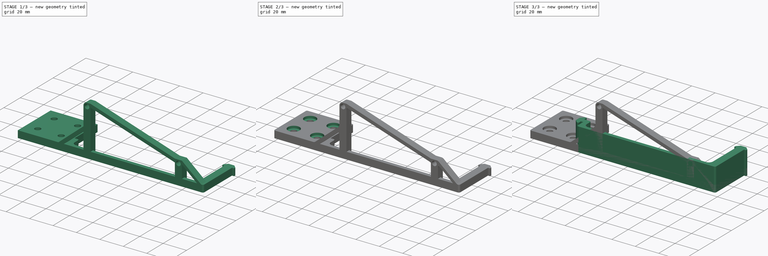
[diagram: build sequence overview — one tinted view per stage of 3, left to right]
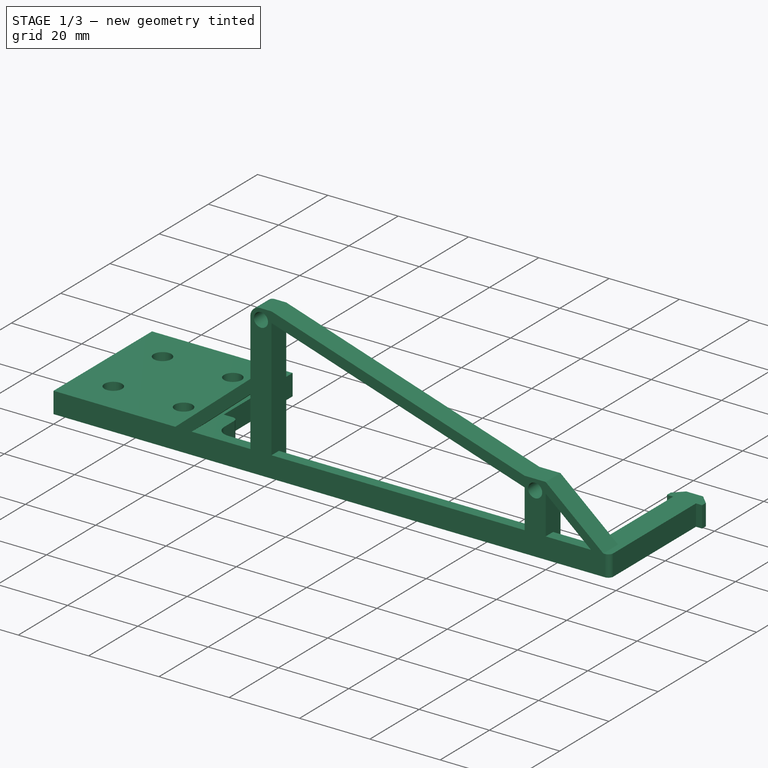
[diagram: stage 1 of 3 — iso view after this stage's code; geometry added in this stage tinted green]
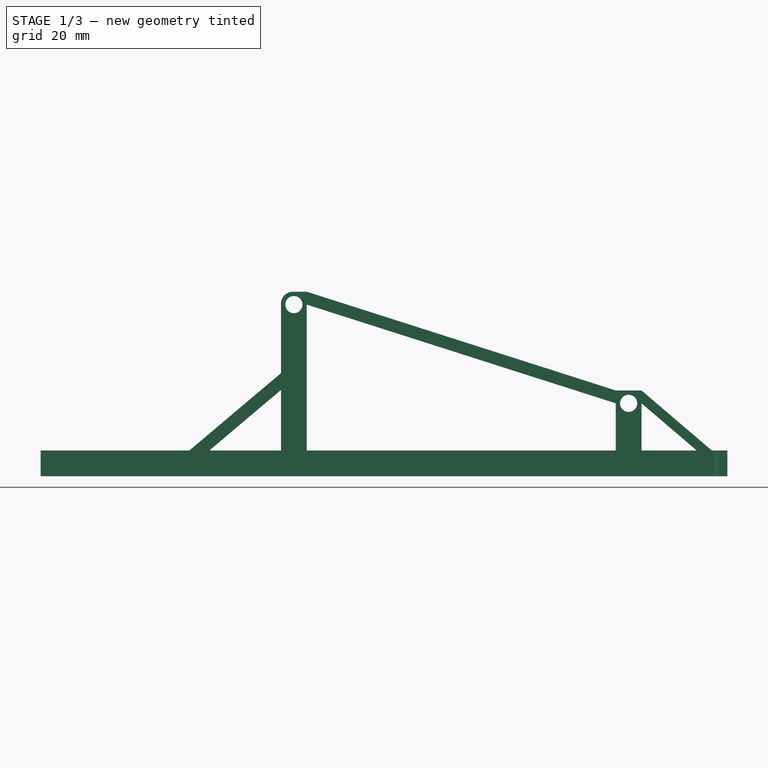
[diagram: stage 1 of 3 — front view after this stage's code; geometry added in this stage tinted green]
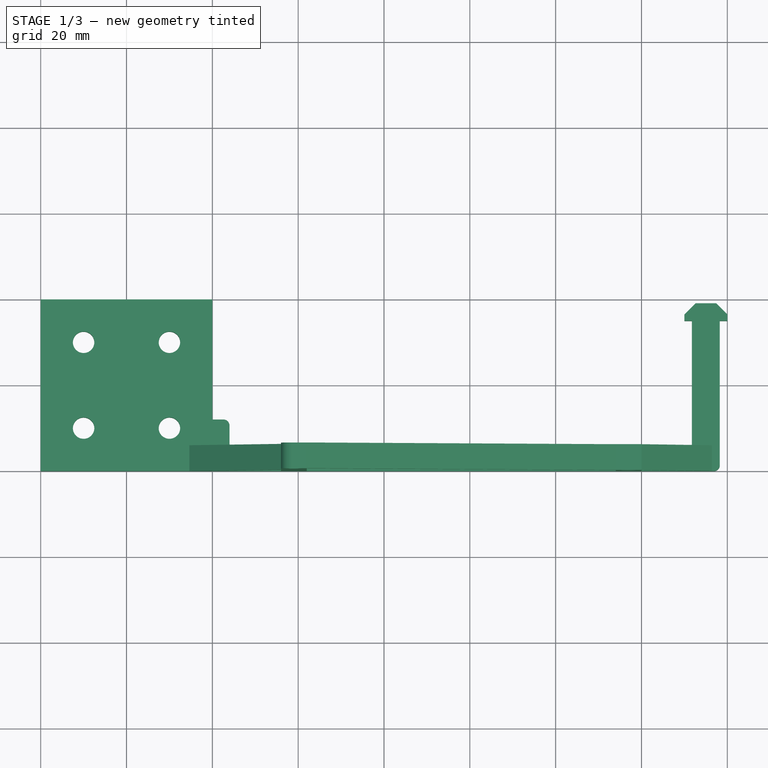
[diagram: stage 1 of 3 — top view after this stage's code; geometry added in this stage tinted green]
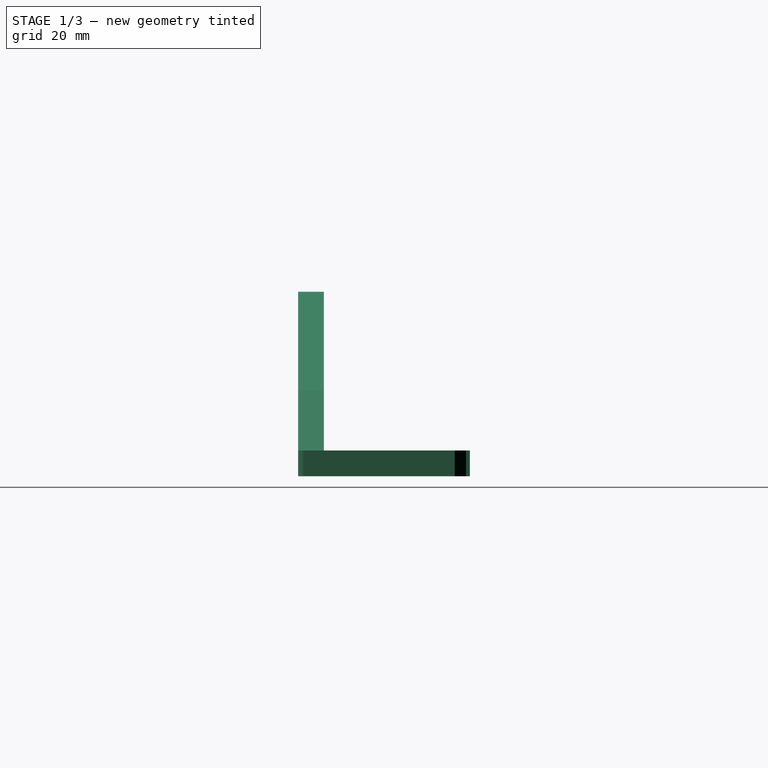
[diagram: stage 1 of 3 — right view after this stage's code; geometry added in this stage tinted green]
FCSTD DOCUMENT  (FreeCAD 1.1R)
Label: simple bracket
License: All rights reserved
LicenseURL: https://en.wikipedia.org/wiki/All_rights_reserved
objects: Sketcher::SketchObject×5, PartDesign::Pad×3, Part::DatumPlane×3, App::Point×2, PartDesign::Pocket×2, PartDesign::Body×2, PartDesign::Fillet×2
note: 33 computed .brp shape members not serialized (recipe doc carries the construction recipe); baked Part::Feature solids carry a one-line shape summary decoded from their .brp

FEATURE [PartDesign::Body] Body
  AllowCompound = false
  Group = -> [Sketch,Pad,DatumPlane,Sketch002,Pocket]
  Origin = -> Origin
  Placement = pos=(0,56.654,0) rot=(0,0,1;0rad)
  Tip = -> Pocket
FEATURE [App::Point] Origin003
  Role = Origin
FEATURE [Sketcher::SketchObject] Sketch003
  ArcFitTolerance = 1e-06
  AttachmentSupport = -> [Origin002]
  ExternalTypes = [0]
  FullyConstrained = true
  MakeInternals = false
  MapMode = 5
  sketch-geometry (89):
    g0: LineSegment StartX=-36 StartY=6.53553 StartZ=0 EndX=-36 EndY=10.5858 EndZ=0
    g1: LineSegment StartX=-38.5858 StartY=0 StartZ=0 EndX=76.8358 EndY=0 EndZ=0
    g2: LineSegment StartX=78.25 StartY=1.41421 StartZ=0 EndX=78.25 EndY=35 EndZ=0
    g3: LineSegment StartX=77.4 StartY=39.1 StartZ=0 EndX=72.6 EndY=39.1 EndZ=0
    g4: LineSegment StartX=70 StartY=35 StartZ=0 EndX=71.75 EndY=35 EndZ=0
    g5: LineSegment StartX=71.75 StartY=35 StartZ=0 EndX=71.75 EndY=6.53553 EndZ=0
    g6: LineSegment StartX=78.25 StartY=35 StartZ=0 EndX=80 EndY=35 EndZ=0
    g7: LineSegment StartX=70 StartY=35 StartZ=0 EndX=70 EndY=36.5 EndZ=0
    g8: LineSegment StartX=70 StartY=36.5 StartZ=0 EndX=72.6 EndY=39.1 EndZ=0
    g9: LineSegment StartX=77.4 StartY=39.1 StartZ=0 EndX=80 EndY=36.5 EndZ=0
    g10: LineSegment StartX=80 StartY=36.5 StartZ=0 EndX=80 EndY=35 EndZ=0
    g11: LineSegment [constr] StartX=70 StartY=36.5 StartZ=0 EndX=80 EndY=36.5 EndZ=0
    g12: LineSegment [constr] StartX=-37.4142 StartY=12 StartZ=0 EndX=-42 EndY=12 EndZ=0
    g13: LineSegment [constr] StartX=-46.1 StartY=12.4 StartZ=0 EndX=-46.1 EndY=7.6 EndZ=0
    g14: LineSegment [constr] StartX=-42 StartY=5 StartZ=0 EndX=-42 EndY=8 EndZ=0
    g15: LineSegment [constr] StartX=-42 StartY=8 StartZ=0 EndX=-40 EndY=8 EndZ=0
    g16: LineSegment [constr] StartX=-42 StartY=12 StartZ=0 EndX=-42 EndY=15 EndZ=0
    g17: LineSegment [constr] StartX=-42 StartY=5 StartZ=0 EndX=-43.5 EndY=5 EndZ=0
    g18: LineSegment [constr] StartX=-43.5 StartY=5 StartZ=0 EndX=-46.1 EndY=7.6 EndZ=0
    g19: LineSegment [constr] StartX=-46.1 StartY=12.4 StartZ=0 EndX=-43.5 EndY=15 EndZ=0
    g20: LineSegment [constr] StartX=-43.5 StartY=15 StartZ=0 EndX=-42 EndY=15 EndZ=0
    g21: LineSegment [constr] StartX=-43.5 StartY=5 StartZ=0 EndX=-43.5 EndY=15 EndZ=0
    g22: LineSegment [constr] StartX=-40 StartY=8 StartZ=0 EndX=-40 EndY=1.41421 EndZ=0
    g23: GeomPoint [constr] X=-36 Y=3 Z=0
    g24: ArcOfCircle CenterX=76.8358 CenterY=1.41421 CenterZ=0 NormalX=0 NormalY=0 NormalZ=1 AngleXU=0 Radius=1.41421 StartAngle=4.71239 EndAngle=6.28319
    g25: GeomPoint [constr] X=78.25 Y=0 Z=0
    g26: LineSegment [constr] StartX=76.8358 StartY=0 StartZ=0 EndX=78.25 EndY=1.41421 EndZ=0
    g27: GeomPoint [constr] X=-36 Y=12 Z=0
    g28: ArcOfCircle [constr] CenterX=-38.5858 CenterY=1.41421 CenterZ=0 NormalX=0 NormalY=0 NormalZ=1 AngleXU=0 Radius=1.41421 StartAngle=3.14159 EndAngle=4.71239
    g29: GeomPoint [constr] X=-40 Y=0 Z=0
    g30: LineSegment [constr] StartX=-40 StartY=1.41421 StartZ=0 EndX=-38.5858 EndY=0 EndZ=0
    g31: GeomPoint [constr] X=71.75 Y=3 Z=0
    g32: LineSegment [constr] StartX=-24.125 StartY=4.41421 StartZ=0 EndX=-24.125 EndY=6 EndZ=0
    g33: LineSegment [constr] StartX=-24.125 StartY=6 StartZ=0 EndX=-18.125 EndY=6 EndZ=0
    g34: LineSegment [constr] StartX=-18.125 StartY=6 StartZ=0 EndX=-18.125 EndY=4.41421 EndZ=0
    g35: LineSegment [constr] StartX=53.875 StartY=4.41421 StartZ=0 EndX=53.875 EndY=6 EndZ=0
    g36: LineSegment [constr] StartX=53.875 StartY=6 StartZ=0 EndX=59.875 EndY=6 EndZ=0
    g37: LineSegment [constr] StartX=59.875 StartY=6 StartZ=0 EndX=59.875 EndY=4.41421 EndZ=0
    g38: LineSegment StartX=-32.4645 StartY=3 StartZ=0 EndX=-25.5392 EndY=3 EndZ=0
    g39: LineSegment StartX=-16.7108 StartY=3 StartZ=0 EndX=52.4608 EndY=3 EndZ=0
    g40: LineSegment StartX=61.2892 StartY=3 StartZ=0 EndX=68.2145 EndY=3 EndZ=0
    g41: LineSegment [constr] StartX=71.75 StartY=35 StartZ=0 EndX=75 EndY=35 EndZ=0
    g42: LineSegment [constr] StartX=75 StartY=35 StartZ=0 EndX=78.25 EndY=35 EndZ=0
    g43: LineSegment [constr] StartX=75 StartY=35 StartZ=0 EndX=75 EndY=0 EndZ=0
    g44: ArcOfCircle CenterX=-37.4142 CenterY=10.5858 CenterZ=0 NormalX=0 NormalY=0 NormalZ=1 AngleXU=0 Radius=1.41421 StartAngle=4e-16 EndAngle=1.5708
    g45: GeomPoint [constr] X=-36 Y=12 Z=0
    g46: ArcOfCircle CenterX=-32.4645 CenterY=6.53553 CenterZ=0 NormalX=0 NormalY=0 NormalZ=1 AngleXU=0 Radius=3.53553 StartAngle=3.14159 EndAngle=4.71239
    g47: GeomPoint [constr] X=-36 Y=3 Z=0
    g48: ArcOfCircle [constr] CenterX=-25.5392 CenterY=4.41421 CenterZ=0 NormalX=0 NormalY=0 NormalZ=1 AngleXU=0 Radius=1.41421 StartAngle=4.71239 EndAngle=6.28319
    g49: GeomPoint [constr] X=-24.125 Y=3 Z=0
    g50: ArcOfCircle [constr] CenterX=-16.7108 CenterY=4.41421 CenterZ=0 NormalX=0 NormalY=0 NormalZ=1 AngleXU=0 Radius=1.41421 StartAngle=3.14159 EndAngle=4.71239
    g51: GeomPoint [constr] X=-18.125 Y=3 Z=0
    g52: ArcOfCircle [constr] CenterX=61.2892 CenterY=4.41421 CenterZ=0 NormalX=0 NormalY=0 NormalZ=1 AngleXU=0 Radius=1.41421 StartAngle=3.14159 EndAngle=4.71239
    g53: GeomPoint [constr] X=59.875 Y=3 Z=0
    g54: ArcOfCircle [constr] CenterX=52.4608 CenterY=4.41421 CenterZ=0 NormalX=0 NormalY=0 NormalZ=1 AngleXU=0 Radius=1.41421 StartAngle=4.71239 EndAngle=6.28319
    g55: GeomPoint [constr] X=53.875 Y=3 Z=0
    g56: ArcOfCircle CenterX=68.2145 CenterY=6.53553 CenterZ=0 NormalX=0 NormalY=0 NormalZ=1 AngleXU=0 Radius=3.53553 StartAngle=4.71239 EndAngle=6.28319
    g57: GeomPoint [constr] X=71.75 Y=3 Z=0
    g58: LineSegment [constr] StartX=-36 StartY=6.53553 StartZ=0 EndX=-32.4645 EndY=3 EndZ=0
    g59: LineSegment [constr] StartX=71.75 StartY=6.53553 StartZ=0 EndX=68.2145 EndY=3 EndZ=0
    g60: LineSegment [constr] StartX=-25.5392 StartY=3 StartZ=0 EndX=-24.125 EndY=4.41421 EndZ=0
    g61: LineSegment [constr] StartX=-18.125 StartY=4.41421 StartZ=0 EndX=-16.7108 EndY=3 EndZ=0
    g62: LineSegment [constr] StartX=52.4608 StartY=3 StartZ=0 EndX=53.875 EndY=4.41421 EndZ=0
    g63: LineSegment [constr] StartX=59.875 StartY=4.41421 StartZ=0 EndX=61.2892 EndY=3 EndZ=0
    g64: LineSegment [constr] StartX=59.875 StartY=3 StartZ=0 EndX=71.75 EndY=3 EndZ=0
    g65: LineSegment [constr] StartX=-24.125 StartY=3 StartZ=0 EndX=-36 EndY=3 EndZ=0
    g66: LineSegment [constr] StartX=-37.4142 StartY=12 StartZ=0 EndX=-36 EndY=10.5858 EndZ=0
    g67: LineSegment [constr] StartX=-24.125 StartY=6 StartZ=0 EndX=-21.125 EndY=6 EndZ=0
    g68: LineSegment [constr] StartX=-21.125 StartY=6 StartZ=0 EndX=-18.125 EndY=6 EndZ=0
    g69: LineSegment [constr] StartX=53.875 StartY=6 StartZ=0 EndX=56.875 EndY=6 EndZ=0
    g70: LineSegment [constr] StartX=56.875 StartY=6 StartZ=0 EndX=59.875 EndY=6 EndZ=0
    g71: LineSegment [constr] StartX=-40 StartY=8 StartZ=0 EndX=-40 EndY=12 EndZ=0
    g72: LineSegment StartX=-40 StartY=12 StartZ=0 EndX=-37.4142 EndY=12 EndZ=0
    g73: LineSegment [constr] StartX=-40 StartY=0 StartZ=0 EndX=-40 EndY=40 EndZ=0
    g74: LineSegment StartX=-40 StartY=40 StartZ=0 EndX=-80 EndY=40 EndZ=0
    g75: LineSegment StartX=-80 StartY=40 StartZ=0 EndX=-80 EndY=0 EndZ=0
    g76: LineSegment StartX=-80 StartY=0 StartZ=0 EndX=-40 EndY=0 EndZ=0
    g77: LineSegment StartX=-40 StartY=0 StartZ=0 EndX=-38.5858 EndY=0 EndZ=0
    g78: LineSegment StartX=-40 StartY=40 StartZ=0 EndX=-40 EndY=12 EndZ=0
    g79: LineSegment StartX=-25.5392 StartY=3 StartZ=0 EndX=-16.7108 EndY=3 EndZ=0
    g80: LineSegment StartX=52.4608 StartY=3 StartZ=0 EndX=61.2892 EndY=3 EndZ=0
    g81: Circle CenterX=-70 CenterY=30 CenterZ=0 NormalX=0 NormalY=0 NormalZ=1 AngleXU=0 Radius=2.5
    g82: Circle CenterX=-50 CenterY=30 CenterZ=0 NormalX=0 NormalY=0 NormalZ=1 AngleXU=0 Radius=2.5
    g83: Circle CenterX=-70 CenterY=10 CenterZ=0 NormalX=0 NormalY=0 NormalZ=1 AngleXU=0 Radius=2.5
    g84: Circle CenterX=-50 CenterY=10 CenterZ=0 NormalX=0 NormalY=0 NormalZ=1 AngleXU=0 Radius=2.5
    g85: LineSegment [constr] StartX=-70 StartY=30 StartZ=0 EndX=-50 EndY=30 EndZ=0
    g86: LineSegment [constr] StartX=-50 StartY=30 StartZ=0 EndX=-50 EndY=10 EndZ=0
    g87: LineSegment [constr] StartX=-50 StartY=10 StartZ=0 EndX=-70 EndY=10 EndZ=0
    g88: LineSegment [constr] StartX=-70 StartY=10 StartZ=0 EndX=-70 EndY=30 EndZ=0
  constraints (219):
    c: Vertical(g0)
    c: PointOnObject(g25,g-1)
    c: Vertical(g2)
    c: Horizontal(g4)
    c: Coincident(g4,g5)
    c: Coincident(g6,g2)
    c: Perpendicular(g5,g4)
    c: Horizontal(g6,g2)
    c: Horizontal(g2,g4)
    c: Equal(g4,g6)
    c: Distance(g25,g5) = 6.5
    c: DistanceX(g4,g6) = 10
    c: Coincident(g7,g4)
    c: Coincident(g7,g8)
    c: Coincident(g8,g3)
    c: Coincident(g9,g3)
    c: Coincident(g9,g10)
    c: Coincident(g10,g6)
    c: Parallel(g10,g7)
    c: Equal(g10,g7)
    c: Angle(g8,g9) = 1.5708
    c: Perpendicular(g4,g7)
    c: Coincident(g11,g7)
    c: Coincident(g11,g9)
    c: Angle(g11,g8) = 0.785398
    c: DistanceY(g10,g10) = 1.5
    c: Horizontal(g3)
    c: Distance(g6,g3) = 4.1
    c: Coincident(g14,g15)
    c: Coincident(g16,g12)
    c: Perpendicular(g15,g14)
    c: Equal(g14,g16)
    c: Distance(g27,g15) = 4
    c: Coincident(g17,g14)
    c: Coincident(g17,g18)
    c: Coincident(g18,g13)
    c: Coincident(g19,g13)
    c: Coincident(g19,g20)
    c: Coincident(g20,g16)
    c: Parallel(g20,g17)
    c: Equal(g20,g17)
    c: Angle(g18,g19) = 1.5708
    c: Perpendicular(g14,g17)
    c: Coincident(g21,g17)
    c: Coincident(g21,g19)
    c: Angle(g21,g18) = 0.785398
    c: Distance(g16,g13) = 4.1
    c: Coincident(g22,g15)
    c: Perpendicular(g22,g1)
    c: DistanceX(g15,g15) = 2
    c: DistanceX(g29,g23) = 4
    c: Perpendicular(g22,g15)
    c: Perpendicular(g0,g12)
    c: Perpendicular(g12,g16)
    c: Parallel(g13,g0)
    c: Vertical(g14,g12)
    c: Distance(g20,g20) = 1.5
    c: Distance(g17,g-1) = 5
    c: PointOnObject(g23,g0)
    c: PointOnObject(g25,g1)
    c: PointOnObject(g25,g2)
    c: Tangent(g1,g24) = -1.5708
    c: Tangent(g2,g24) = -1.5708
    c: Coincident(g26,g1)
    c: Coincident(g26,g2)
    c: PointOnObject(g27,g0)
    c: PointOnObject(g27,g12)
    c: PointOnObject(g29,g1)
    c: PointOnObject(g29,g22)
    c: Tangent(g1,g28) = -1.5708
    c: Tangent(g22,g28) = -1.5708
    c: Coincident(g30,g1)
    c: Coincident(g30,g22)
    c: PointOnObject(g31,g5)
    c: Distance(g4,g1) = 35
    c: DistanceY(g17,g19) = 10
    c: Distance(g-1,g22) = 40
    c: Coincident(g32,g33)
    c: Coincident(g33,g34)
    c: Perpendicular(g34,g33)
    c: Coincident(g35,g36)
    c: Parallel(g36,g33)
    c: Coincident(g36,g37)
    c: Vertical(g37)
    c: Parallel(g38,g33)
    c: Perpendicular(g38,g0)
    c: Perpendicular(g32,g38)
    c: Horizontal(g39)
    c: Horizontal(g49,g51)
    c: Horizontal(g55,g53)
    c: Perpendicular(g35,g39)
    c: Equal(g33,g36)
    c: Distance(g33,g33) = 6
    c: Distance(g34,g51) = 3
    c: Parallel(g40,g1)
    c: Parallel(g38,g1)
    c: Distance(g1,g39) = 3
    c: Coincident(g41,g4)
    c: Horizontal(g41)
    c: Coincident(g41,g42)
    c: Coincident(g42,g2)
    c: Equal(g41,g42)
    c: Coincident(g43,g41)
    c: Vertical(g43)
    c: Distance(g22,g43) = 115
    c: PointOnObject(g45,g0)
    c: PointOnObject(g45,g12)
    c: Tangent(g0,g44) = -1.5708
    c: Tangent(g12,g44) = -1.5708
    c: PointOnObject(g47,g38)
    c: Tangent(g0,g46) = 1.5708
    c: Tangent(g38,g46) = -1.5708
    c: PointOnObject(g49,g32)
    c: PointOnObject(g49,g38)
    c: Tangent(g32,g48) = -1.5708
    c: Tangent(g38,g48) = -1.5708
    c: PointOnObject(g51,g34)
    c: PointOnObject(g51,g39)
    c: Tangent(g34,g50) = -1.5708
    c: Tangent(g39,g50) = -1.5708
    c: PointOnObject(g53,g37)
    c: PointOnObject(g53,g40)
    c: Tangent(g37,g52) = -1.5708
    c: Tangent(g40,g52) = -1.5708
    c: PointOnObject(g55,g35)
    c: PointOnObject(g55,g39)
    c: Tangent(g35,g54) = -1.5708
    c: Tangent(g39,g54) = -1.5708
    c: PointOnObject(g57,g40)
    c: Tangent(g5,g56) = 1.5708
    c: Tangent(g40,g56) = -1.5708
    c: Coincident(g58,g0)
    c: Coincident(g58,g38)
    c: Coincident(g59,g5)
    c: Coincident(g59,g40)
    c: Equal(g59,g58)
    c: Distance(g58,g58) = 5
    c: Coincident(g60,g38)
    c: Coincident(g60,g32)
    c: Coincident(g61,g34)
    c: Coincident(g61,g39)
    c: Coincident(g62,g39)
    c: Coincident(g62,g35)
    c: Coincident(g63,g37)
    c: Coincident(g63,g40)
    c: Equal(g63,g62)
    c: Equal(g62,g61)
    c: Equal(g61,g60)
    c: Distance(g60,g60) = 2
    c: Equal(g65,g64)
    c: Coincident(g64,g57)
    c: Coincident(g64,g53)
    c: Coincident(g65,g49)
    c: Coincident(g65,g47)
    c: Coincident(g66,g12)
    c: Coincident(g66,g0)
    c: Equal(g66,g60)
    c: Equal(g30,g66)
    c: Equal(g26,g63)
    c: Equal(g34,g35)
    c: Coincident(g67,g32)
    c: Coincident(g67,g68)
    c: Coincident(g68,g33)
    c: Equal(g68,g67)
    c: PointOnObject(g67,g33)
    c: Coincident(g69,g35)
    c: Coincident(g69,g70)
    c: Coincident(g70,g36)
    c: Equal(g70,g69)
    c: PointOnObject(g69,g36)
    c: DistanceX(g67,g69) = 78
    c: Coincident(g23,g47)
    c: Coincident(g31,g57)
    c: PointOnObject(g43,g1)
    c: DistanceX(g33,g35) = 72
    c: Coincident(g71,g15)
    c: PointOnObject(g71,g12)
    c: Vertical(g71)
    c: Coincident(g72,g71)
    c: Coincident(g72,g12)
    c: Coincident(g73,g74)
    c: Coincident(g74,g75)
    c: Coincident(g75,g76)
    c: Coincident(g76,g73)
    c: Vertical(g73)
    c: Vertical(g75)
    c: Horizontal(g74)
    c: Horizontal(g76)
    c: Coincident(g73,g29)
    c: DistanceX(g74,g74) = 40
    c: Equal(g75,g76)
    c: Coincident(g77,g29)
    c: Coincident(g77,g1)
    c: Coincident(g78,g73)
    c: Coincident(g78,g71)
    c: Coincident(g79,g38)
    c: Coincident(g79,g39)
    c: Coincident(g80,g39)
    c: Coincident(g80,g40)
    c: Coincident(g85,g81)
    c: Coincident(g85,g82)
    c: Coincident(g85,g86)
    c: Coincident(g86,g84)
    c: Vertical(g86)
    c: Coincident(g86,g87)
    c: Coincident(g87,g83)
    c: Horizontal(g87)
    c: Coincident(g87,g88)
    c: Coincident(g88,g81)
    c: Vertical(g88)
    c: Perpendicular(g85,g88)
    c: Equal(g88,g85)
    c: Equal(g81,g83)
    c: Equal(g83,g82)
    c: Equal(g82,g84)
    c: Distance(g74,g85) = 10
    c: Diameter(g82) = 5
    c: Distance(g83,g76) = 10
    c: Distance(g83,g75) = 10
FEATURE [PartDesign::Pad] Pad001
  Direction = (0,0,1)
  Length = 6
  Length2 = 10
  Profile = -> Sketch003
  ReferenceAxis = -> Sketch003 [N_Axis]
  Refine = true
  SideType = 0
  Suppressed = false
  Type = 0
  Type2 = 0
FEATURE [Part::DatumPlane] DatumPlane001
  AttachmentOffset = pos=(0,0,0) rot=(0,1,0;1.5708rad)
  AttachmentSupport = -> [Pad001]
  MapMode = 7
  Placement = pos=(-80,0,0) rot=(1,0,0;1.5708rad)
FEATURE [Sketcher::SketchObject] Sketch004
  ArcFitTolerance = 1e-06
  AttachmentSupport = -> [DatumPlane001]
  ExternalTypes = [0]
  FullyConstrained = false
  MakeInternals = false
  MapMode = 5
  Placement = pos=(-80,0,0) rot=(1,0,0;1.5708rad)
  sketch-geometry (33):
    g0: Circle CenterX=59 CenterY=40 CenterZ=0 NormalX=0 NormalY=0 NormalZ=1 AngleXU=0 Radius=2
    g1: Circle CenterX=137 CenterY=17 CenterZ=0 NormalX=0 NormalY=0 NormalZ=1 AngleXU=0 Radius=2
    g2: LineSegment [constr] StartX=56 StartY=0 StartZ=0 EndX=56 EndY=40.2233 EndZ=0
    g3: LineSegment StartX=58.7767 StartY=43 StartZ=0 EndX=62 EndY=43 EndZ=0
    g4: LineSegment [constr] StartX=62 StartY=43 StartZ=0 EndX=62 EndY=0 EndZ=0
    g5: LineSegment [constr] StartX=134 StartY=0 StartZ=0 EndX=134 EndY=20 EndZ=0
    g6: LineSegment StartX=134 StartY=20 StartZ=0 EndX=136.748 EndY=20 EndZ=0
    g7: LineSegment [constr] StartX=140 StartY=16.7476 StartZ=0 EndX=140 EndY=0 EndZ=0
    g8: LineSegment StartX=56 StartY=0 StartZ=0 EndX=62 EndY=0 EndZ=0
    g9: LineSegment [constr] StartX=56 StartY=40 StartZ=0 EndX=59 EndY=40 EndZ=0
    g10: LineSegment [constr] StartX=59 StartY=40 StartZ=0 EndX=62 EndY=40 EndZ=0
    g11: LineSegment [constr] StartX=137 StartY=17 StartZ=0 EndX=134 EndY=17 EndZ=0
    g12: LineSegment [constr] StartX=137 StartY=17 StartZ=0 EndX=140 EndY=17 EndZ=0
    g13: LineSegment StartX=134 StartY=0 StartZ=0 EndX=140 EndY=0 EndZ=0
    g14: LineSegment StartX=62 StartY=43 StartZ=0 EndX=134 EndY=20 EndZ=0
    g15: LineSegment StartX=134 StartY=17 StartZ=0 EndX=62 EndY=40 EndZ=0
    g16: LineSegment StartX=62 StartY=40 StartZ=0 EndX=62 EndY=0 EndZ=0
    g17: LineSegment StartX=134 StartY=17 StartZ=0 EndX=134 EndY=0 EndZ=0
    g18: ArcOfCircle CenterX=58.7767 CenterY=40.2233 CenterZ=0 NormalX=0 NormalY=0 NormalZ=1 AngleXU=0 Radius=2.77673 StartAngle=1.5708 EndAngle=3.14159
    g19: GeomPoint [constr] X=56 Y=43 Z=0
    g20: ArcOfCircle [constr] CenterX=136.748 CenterY=16.7476 CenterZ=0 NormalX=0 NormalY=0 NormalZ=1 AngleXU=0 Radius=3.25236 StartAngle=-9e-16 EndAngle=1.5708
    g21: GeomPoint [constr] X=140 Y=20 Z=0
    g22: LineSegment StartX=140 StartY=20 StartZ=0 EndX=156.621 EndY=5.80986 EndZ=0
    g23: LineSegment StartX=156.621 StartY=5.80986 StartZ=0 EndX=156.621 EndY=2.53961 EndZ=0
    g24: LineSegment StartX=156.621 StartY=2.53961 StartZ=0 EndX=152.401 EndY=6.41256 EndZ=0
    g25: LineSegment StartX=152.401 StartY=6.41256 StartZ=0 EndX=140 EndY=17 EndZ=0
    g26: LineSegment StartX=33.0164 StartY=0.705867 StartZ=0 EndX=56 EndY=20.1116 EndZ=0
    g27: LineSegment StartX=56 StartY=24.038 StartZ=0 EndX=31.081 EndY=2.99808 EndZ=0
    g28: LineSegment StartX=31.081 StartY=2.99808 StartZ=0 EndX=33.0164 EndY=0.705867 EndZ=0
    g29: LineSegment StartX=56 StartY=40.2233 StartZ=0 EndX=56 EndY=24.038 EndZ=0
    g30: LineSegment StartX=56 StartY=0 StartZ=0 EndX=56 EndY=20.1116 EndZ=0
    g31: LineSegment StartX=136.748 StartY=20 StartZ=0 EndX=140 EndY=20 EndZ=0
    g32: LineSegment StartX=140 StartY=17 StartZ=0 EndX=140 EndY=0 EndZ=0
  constraints (77):
    c: Equal(g0,g1)
    c: DistanceX(g0,g1) = 78
    c: Diameter(g0) = 4
    c: DistanceY(g1,g0) = 23
    c: Distance(g0,g-2) = 59
    c: Distance(g0,g-1) = 40
    c: PointOnObject(g2,g-1)
    c: Vertical(g2)
    c: Horizontal(g3)
    c: Coincident(g3,g4)
    c: PointOnObject(g4,g-1)
    c: Vertical(g4)
    c: PointOnObject(g5,g-1)
    c: Coincident(g5,g6)
    c: PointOnObject(g7,g-1)
    c: Perpendicular(g7,g6)
    c: Parallel(g6,g3)
    c: Perpendicular(g6,g5)
    c: Coincident(g8,g2)
    c: Coincident(g8,g4)
    c: PointOnObject(g9,g2)
    c: Coincident(g9,g0)
    c: Coincident(g9,g10)
    c: PointOnObject(g10,g4)
    c: Equal(g10,g9)
    c: Horizontal(g9)
    c: Horizontal(g10)
    c: Distance(g19,g9) = 3
    c: Coincident(g11,g1)
    c: PointOnObject(g11,g5)
    c: Coincident(g12,g1)
    c: PointOnObject(g12,g7)
    c: Equal(g12,g11)
    c: Horizontal(g12)
    c: Horizontal(g11)
    c: Distance(g6,g21) = 6
    c: Distance(g1,g6) = 3
    c: Coincident(g13,g5)
    c: Coincident(g13,g7)
    c: Coincident(g14,g3)
    c: Coincident(g14,g5)
    c: Coincident(g15,g11)
    c: Coincident(g15,g10)
    c: Coincident(g16,g10)
    c: Coincident(g16,g4)
    c: Coincident(g17,g11)
    c: Coincident(g17,g5)
    c: PointOnObject(g19,g2)
    c: PointOnObject(g19,g3)
    c: Tangent(g2,g18) = 1.5708
    c: Tangent(g3,g18) = 1.5708
    c: PointOnObject(g21,g6)
    c: PointOnObject(g21,g7)
    c: Tangent(g6,g20) = 1.5708
    c: Tangent(g7,g20) = 1.5708
    c: Coincident(g22,g21)
    c: Coincident(g22,g23)
    c: Vertical(g23)
    c: Coincident(g23,g24)
    c: Coincident(g25,g24)
    c: Coincident(g25,g12)
    c: Parallel(g25,g22)
    c: Symmetric(g2,g2,g26)
    c: PointOnObject(g27,g2)
    c: Parallel(g27,g26)
    c: Coincident(g27,g28)
    c: Coincident(g28,g26)
    c: Coincident(g29,g2)
    c: Coincident(g30,g2)
    c: Coincident(g30,g26)
    c: Coincident(g32,g12)
    c: Coincident(g32,g7)
    c: Coincident(g29,g27)
    c: Equal(g8,g13)
    c: Coincident(g31,g6)
    c: Perpendicular(g27,g28)
    c: Equal(g28,g10)
FEATURE [PartDesign::Pad] Pad002
  BaseFeature = -> Pad001
  Direction = (0,-1,2e-16)
  Length = 6
  Length2 = 10
  Profile = -> Sketch004
  ReferenceAxis = -> Sketch004 [N_Axis]
  Refine = true
  Reversed = true
  SideType = 0
  Suppressed = false
  Type = 0
  Type2 = 0
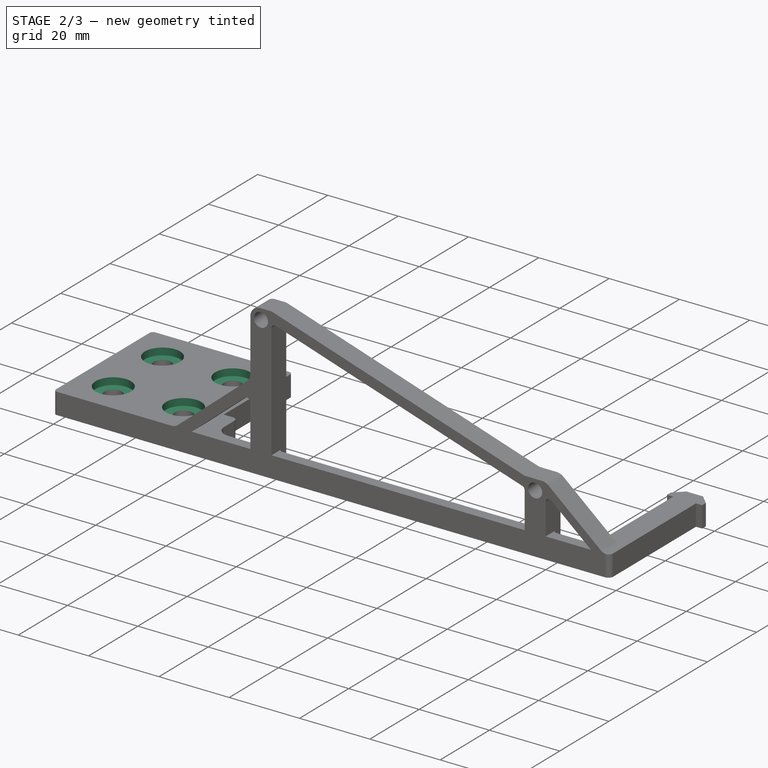
[diagram: stage 2 of 3 — iso view after this stage's code; geometry added in this stage tinted green]
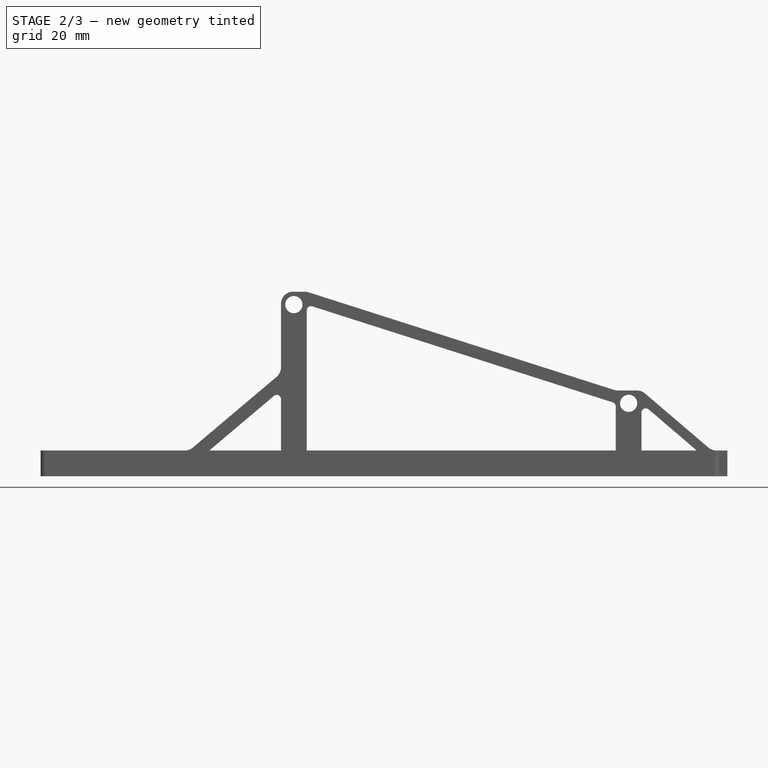
[diagram: stage 2 of 3 — front view after this stage's code; geometry added in this stage tinted green]
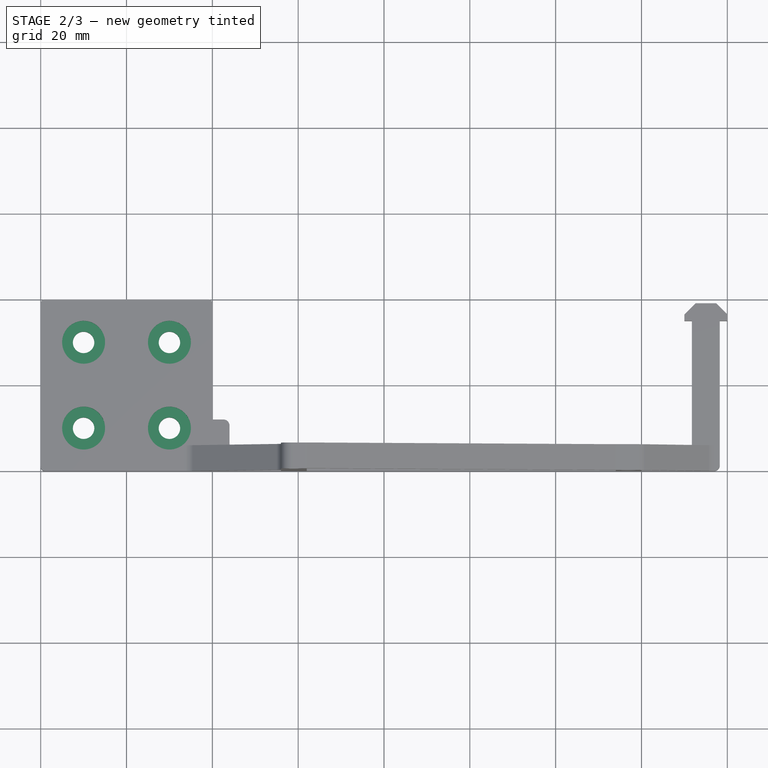
[diagram: stage 2 of 3 — top view after this stage's code; geometry added in this stage tinted green]
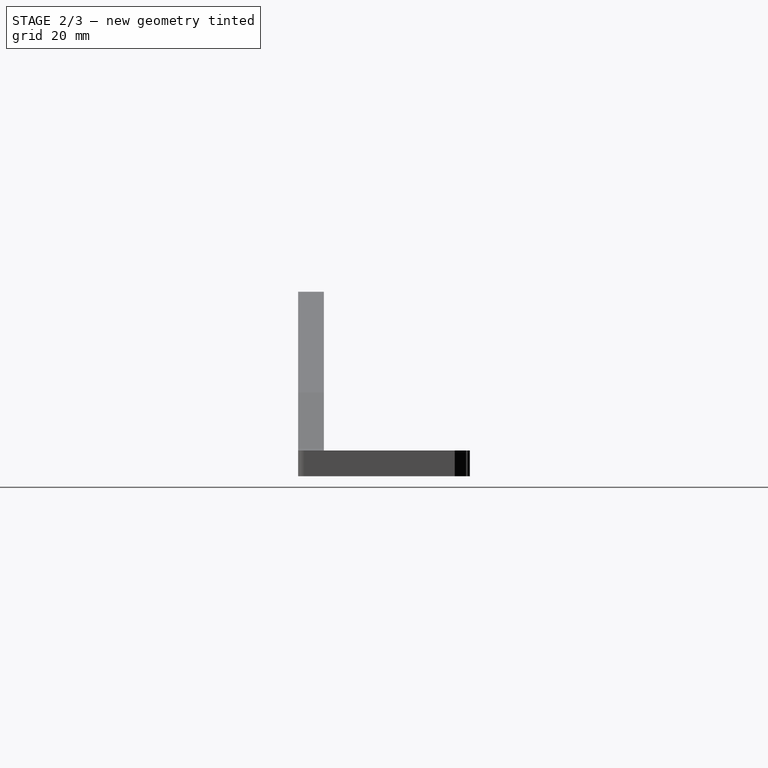
[diagram: stage 2 of 3 — right view after this stage's code; geometry added in this stage tinted green]
FEATURE [PartDesign::Fillet] Fillet
  Base = -> Pad002 [Edge107,Edge110,Edge111,Edge113,Edge15,Edge69]
  BaseFeature = -> Pad002
  Radius = 3
  Refine = true
  SupportTransform = false
  Suppressed = false
  UseAllEdges = false
FEATURE [PartDesign::Fillet] Fillet001
  Base = -> Fillet [Edge50,Edge78,Edge24,Edge135,Edge142,Edge141,Edge138,Edge87,Edge134,Edge82,Edge136]
  BaseFeature = -> Fillet
  Radius = 1
  Refine = true
  SupportTransform = false
  Suppressed = false
  UseAllEdges = false
FEATURE [Part::DatumPlane] DatumPlane002
  AttachmentOffset = pos=(0,0,0) rot=(1,0,0;1.5708rad)
  AttachmentSupport = -> [DatumPlane001]
  MapMode = 5
  Placement = pos=(-80,0,0) rot=(1,0,0;3.14159rad)
FEATURE [Sketcher::SketchObject] Sketch005
  ArcFitTolerance = 1e-06
  AttachmentOffset = pos=(0,0,-6) rot=(0,0,1;0rad)
  AttachmentSupport = -> [DatumPlane002]
  ExternalTypes = [0]
  FullyConstrained = true
  MakeInternals = false
  MapMode = 5
  Placement = pos=(-80,0,6) rot=(1,0,0;3.14159rad)
  sketch-geometry (8):
    g0: LineSegment [constr] StartX=10 StartY=-10 StartZ=0 EndX=10 EndY=-30 EndZ=0
    g1: LineSegment [constr] StartX=10 StartY=-30 StartZ=0 EndX=30 EndY=-30 EndZ=0
    g2: LineSegment [constr] StartX=30 StartY=-30 StartZ=0 EndX=30 EndY=-10 EndZ=0
    g3: LineSegment [constr] StartX=30 StartY=-10 StartZ=0 EndX=10 EndY=-10 EndZ=0
    g4: Circle CenterX=10 CenterY=-10 CenterZ=0 NormalX=0 NormalY=0 NormalZ=1 AngleXU=0 Radius=5
    g5: Circle CenterX=30 CenterY=-10 CenterZ=0 NormalX=0 NormalY=0 NormalZ=1 AngleXU=0 Radius=5
    g6: Circle CenterX=30 CenterY=-30 CenterZ=0 NormalX=0 NormalY=0 NormalZ=1 AngleXU=0 Radius=5
    g7: Circle CenterX=10 CenterY=-30 CenterZ=0 NormalX=0 NormalY=0 NormalZ=1 AngleXU=0 Radius=5
  constraints (20):
    c: Coincident(g0,g1)
    c: Coincident(g1,g2)
    c: Coincident(g2,g3)
    c: Coincident(g3,g0)
    c: Vertical(g0)
    c: Vertical(g2)
    c: Horizontal(g1)
    c: Horizontal(g3)
    c: Equal(g0,g1)
    c: DistanceX(g1,g1) = 20
    c: Distance(g0,g-2) = 10
    c: Distance(g-1,g3) = 10
    c: Coincident(g4,g0)
    c: Coincident(g5,g2)
    c: Coincident(g6,g1)
    c: Coincident(g7,g0)
    c: Equal(g7,g4)
    c: Equal(g4,g5)
    c: Equal(g5,g6)
    c: Diameter(g5) = 10
FEATURE [PartDesign::Pocket] Pocket001
  BaseFeature = -> Fillet001
  Direction = (0,0,1)
  Length = 2
  Length2 = 5
  Profile = -> Sketch005
  ReferenceAxis = -> Sketch005 [N_Axis]
  Refine = true
  Reversed = true
  SideType = 0
  Suppressed = false
  Type = 0
  Type2 = 0
FEATURE [PartDesign::Body] Body001
  AllowCompound = false
  Group = -> [Sketch003,Pad001,Sketch004,DatumPlane001,Pad002,Fillet,Fillet001,DatumPlane002,Sketch005,Pocket001]
  Origin = -> Origin002
  Tip = -> Pocket001
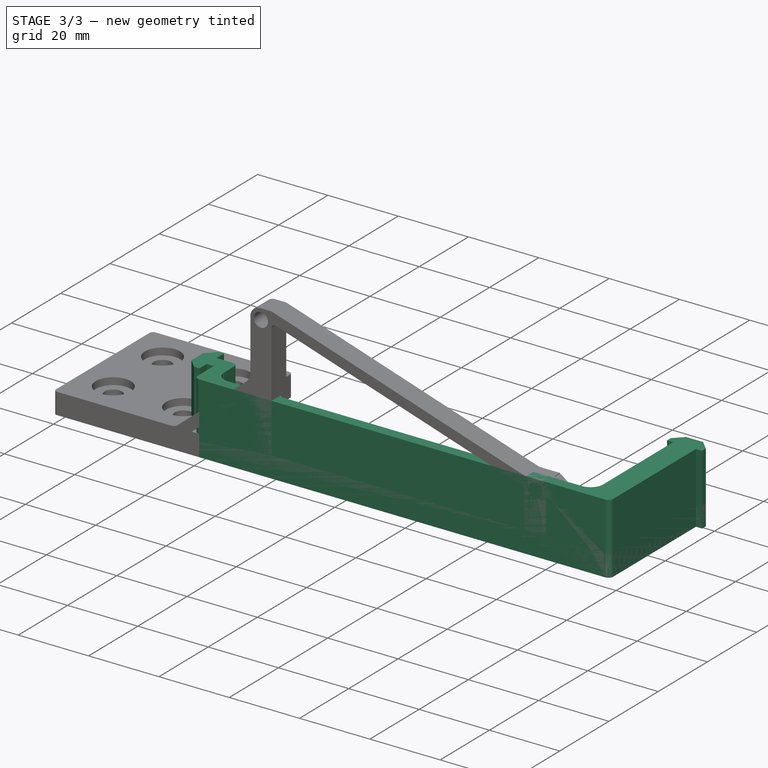
[diagram: stage 3 of 3 — iso view after this stage's code; geometry added in this stage tinted green]
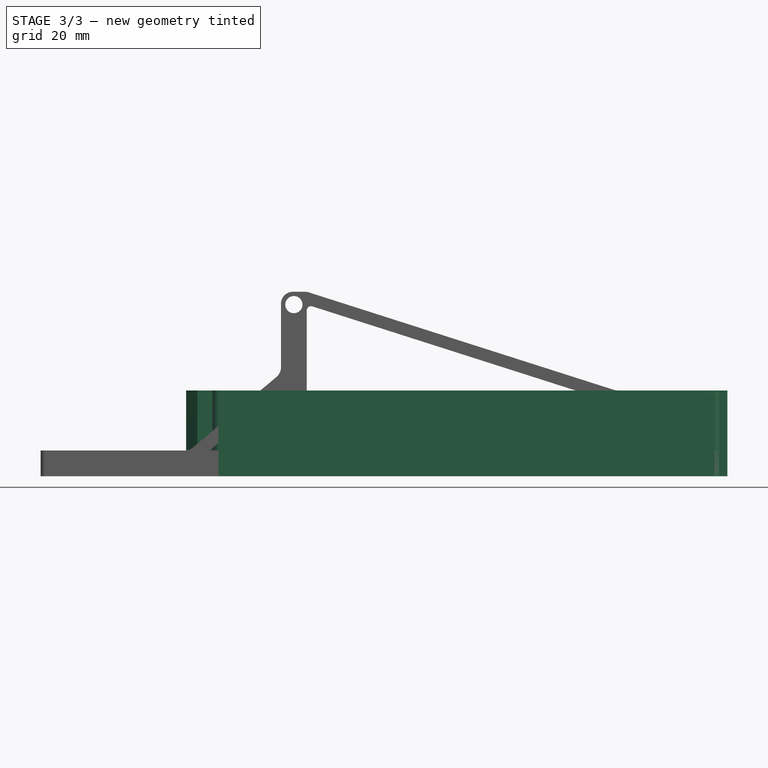
[diagram: stage 3 of 3 — front view after this stage's code; geometry added in this stage tinted green]
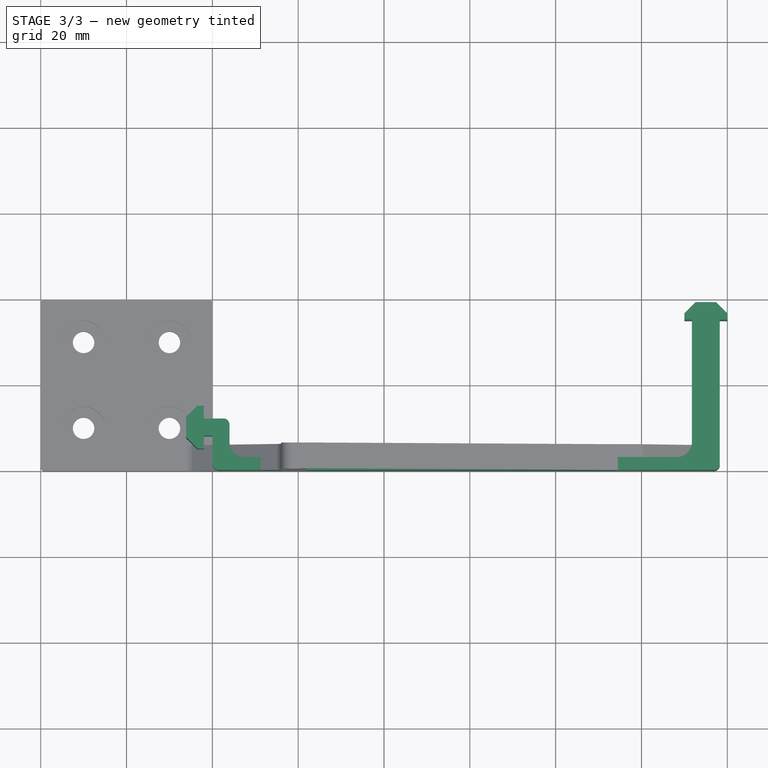
[diagram: stage 3 of 3 — top view after this stage's code; geometry added in this stage tinted green]
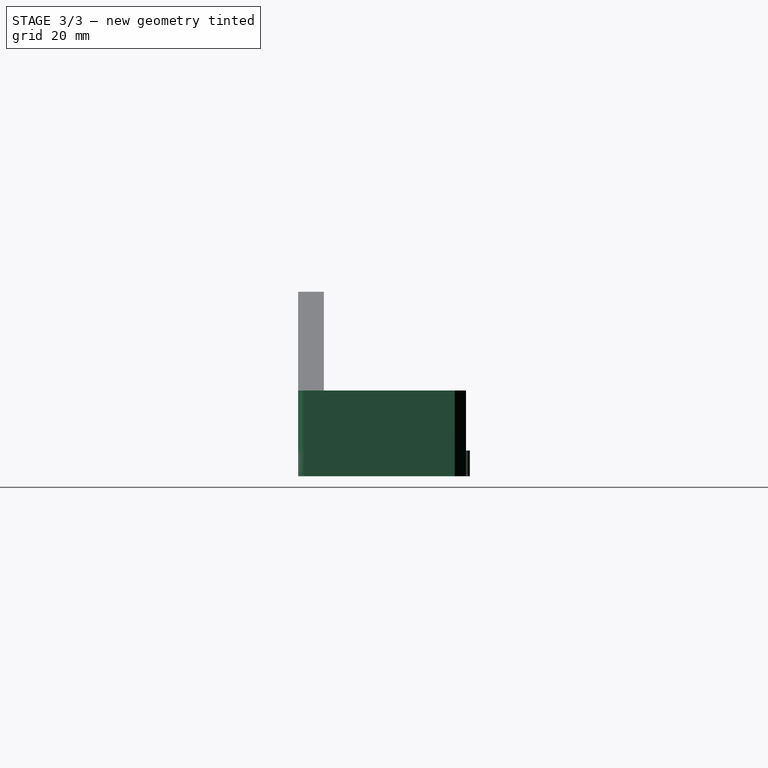
[diagram: stage 3 of 3 — right view after this stage's code; geometry added in this stage tinted green]
FEATURE [App::Point] Origin001
  Role = Origin
FEATURE [Sketcher::SketchObject] Sketch
  ArcFitTolerance = 1e-06
  AttachmentSupport = -> [Origin]
  ExternalTypes = [0]
  FullyConstrained = true
  MakeInternals = false
  MapMode = 5
  sketch-geometry (71):
    g0: LineSegment StartX=-36 StartY=6.53553 StartZ=0 EndX=-36 EndY=10.5858 EndZ=0
    g1: LineSegment StartX=-38.5858 StartY=0 StartZ=0 EndX=76.8358 EndY=0 EndZ=0
    g2: LineSegment StartX=78.25 StartY=1.41421 StartZ=0 EndX=78.25 EndY=35 EndZ=0
    g3: LineSegment StartX=77.4 StartY=39.1 StartZ=0 EndX=72.6 EndY=39.1 EndZ=0
    g4: LineSegment StartX=70 StartY=35 StartZ=0 EndX=71.75 EndY=35 EndZ=0
    g5: LineSegment StartX=71.75 StartY=35 StartZ=0 EndX=71.75 EndY=6.53553 EndZ=0
    g6: LineSegment StartX=78.25 StartY=35 StartZ=0 EndX=80 EndY=35 EndZ=0
    g7: LineSegment StartX=70 StartY=35 StartZ=0 EndX=70 EndY=36.5 EndZ=0
    g8: LineSegment StartX=70 StartY=36.5 StartZ=0 EndX=72.6 EndY=39.1 EndZ=0
    g9: LineSegment StartX=77.4 StartY=39.1 StartZ=0 EndX=80 EndY=36.5 EndZ=0
    g10: LineSegment StartX=80 StartY=36.5 StartZ=0 EndX=80 EndY=35 EndZ=0
    g11: LineSegment [constr] StartX=70 StartY=36.5 StartZ=0 EndX=80 EndY=36.5 EndZ=0
    g12: LineSegment StartX=-37.4142 StartY=12 StartZ=0 EndX=-42 EndY=12 EndZ=0
    g13: LineSegment StartX=-46.1 StartY=12.4 StartZ=0 EndX=-46.1 EndY=7.6 EndZ=0
    g14: LineSegment StartX=-42 StartY=5 StartZ=0 EndX=-42 EndY=8 EndZ=0
    g15: LineSegment StartX=-42 StartY=8 StartZ=0 EndX=-40 EndY=8 EndZ=0
    g16: LineSegment StartX=-42 StartY=12 StartZ=0 EndX=-42 EndY=15 EndZ=0
    g17: LineSegment StartX=-42 StartY=5 StartZ=0 EndX=-43.5 EndY=5 EndZ=0
    g18: LineSegment StartX=-43.5 StartY=5 StartZ=0 EndX=-46.1 EndY=7.6 EndZ=0
    g19: LineSegment StartX=-46.1 StartY=12.4 StartZ=0 EndX=-43.5 EndY=15 EndZ=0
    g20: LineSegment StartX=-43.5 StartY=15 StartZ=0 EndX=-42 EndY=15 EndZ=0
    g21: LineSegment [constr] StartX=-43.5 StartY=5 StartZ=0 EndX=-43.5 EndY=15 EndZ=0
    g22: LineSegment StartX=-40 StartY=8 StartZ=0 EndX=-40 EndY=1.41421 EndZ=0
    g23: GeomPoint [constr] X=-36 Y=3 Z=0
    g24: ArcOfCircle CenterX=76.8358 CenterY=1.41421 CenterZ=0 NormalX=0 NormalY=0 NormalZ=1 AngleXU=0 Radius=1.41421 StartAngle=4.71239 EndAngle=6.28319
    g25: GeomPoint [constr] X=78.25 Y=0 Z=0
    g26: LineSegment [constr] StartX=76.8358 StartY=0 StartZ=0 EndX=78.25 EndY=1.41421 EndZ=0
    g27: GeomPoint [constr] X=-36 Y=12 Z=0
    g28: ArcOfCircle CenterX=-38.5858 CenterY=1.41421 CenterZ=0 NormalX=0 NormalY=0 NormalZ=1 AngleXU=0 Radius=1.41421 StartAngle=3.14159 EndAngle=4.71239
    g29: GeomPoint [constr] X=-40 Y=0 Z=0
    g30: LineSegment [constr] StartX=-40 StartY=1.41421 StartZ=0 EndX=-38.5858 EndY=0 EndZ=0
    g31: GeomPoint [constr] X=71.75 Y=3 Z=0
    g32: LineSegment StartX=-24.125 StartY=4.41421 StartZ=0 EndX=-24.125 EndY=6 EndZ=0
    g33: LineSegment StartX=-24.125 StartY=6 StartZ=0 EndX=-18.125 EndY=6 EndZ=0
    g34: LineSegment StartX=-18.125 StartY=6 StartZ=0 EndX=-18.125 EndY=4.41421 EndZ=0
    g35: LineSegment StartX=53.875 StartY=4.41421 StartZ=0 EndX=53.875 EndY=6 EndZ=0
    g36: LineSegment StartX=53.875 StartY=6 StartZ=0 EndX=59.875 EndY=6 EndZ=0
    g37: LineSegment StartX=59.875 StartY=6 StartZ=0 EndX=59.875 EndY=4.41421 EndZ=0
    g38: LineSegment StartX=-32.4645 StartY=3 StartZ=0 EndX=-25.5392 EndY=3 EndZ=0
    g39: LineSegment StartX=-16.7108 StartY=3 StartZ=0 EndX=52.4608 EndY=3 EndZ=0
    g40: LineSegment StartX=61.2892 StartY=3 StartZ=0 EndX=68.2145 EndY=3 EndZ=0
    g41: LineSegment [constr] StartX=71.75 StartY=35 StartZ=0 EndX=75 EndY=35 EndZ=0
    g42: LineSegment [constr] StartX=75 StartY=35 StartZ=0 EndX=78.25 EndY=35 EndZ=0
    g43: LineSegment [constr] StartX=75 StartY=35 StartZ=0 EndX=75 EndY=0 EndZ=0
    g44: ArcOfCircle CenterX=-37.4142 CenterY=10.5858 CenterZ=0 NormalX=0 NormalY=0 NormalZ=1 AngleXU=0 Radius=1.41421 StartAngle=4e-16 EndAngle=1.5708
    g45: GeomPoint [constr] X=-36 Y=12 Z=0
    g46: ArcOfCircle CenterX=-32.4645 CenterY=6.53553 CenterZ=0 NormalX=0 NormalY=0 NormalZ=1 AngleXU=0 Radius=3.53553 StartAngle=3.14159 EndAngle=4.71239
    g47: GeomPoint [constr] X=-36 Y=3 Z=0
    g48: ArcOfCircle CenterX=-25.5392 CenterY=4.41421 CenterZ=0 NormalX=0 NormalY=0 NormalZ=1 AngleXU=0 Radius=1.41421 StartAngle=4.71239 EndAngle=6.28319
    g49: GeomPoint [constr] X=-24.125 Y=3 Z=0
    g50: ArcOfCircle CenterX=-16.7108 CenterY=4.41421 CenterZ=0 NormalX=0 NormalY=0 NormalZ=1 AngleXU=0 Radius=1.41421 StartAngle=3.14159 EndAngle=4.71239
    g51: GeomPoint [constr] X=-18.125 Y=3 Z=0
    g52: ArcOfCircle CenterX=61.2892 CenterY=4.41421 CenterZ=0 NormalX=0 NormalY=0 NormalZ=1 AngleXU=0 Radius=1.41421 StartAngle=3.14159 EndAngle=4.71239
    g53: GeomPoint [constr] X=59.875 Y=3 Z=0
    g54: ArcOfCircle CenterX=52.4608 CenterY=4.41421 CenterZ=0 NormalX=0 NormalY=0 NormalZ=1 AngleXU=0 Radius=1.41421 StartAngle=4.71239 EndAngle=6.28319
    g55: GeomPoint [constr] X=53.875 Y=3 Z=0
    g56: ArcOfCircle CenterX=68.2145 CenterY=6.53553 CenterZ=0 NormalX=0 NormalY=0 NormalZ=1 AngleXU=0 Radius=3.53553 StartAngle=4.71239 EndAngle=6.28319
    g57: GeomPoint [constr] X=71.75 Y=3 Z=0
    g58: LineSegment [constr] StartX=-36 StartY=6.53553 StartZ=0 EndX=-32.4645 EndY=3 EndZ=0
    g59: LineSegment [constr] StartX=71.75 StartY=6.53553 StartZ=0 EndX=68.2145 EndY=3 EndZ=0
    g60: LineSegment [constr] StartX=-25.5392 StartY=3 StartZ=0 EndX=-24.125 EndY=4.41421 EndZ=0
    g61: LineSegment [constr] StartX=-18.125 StartY=4.41421 StartZ=0 EndX=-16.7108 EndY=3 EndZ=0
    g62: LineSegment [constr] StartX=52.4608 StartY=3 StartZ=0 EndX=53.875 EndY=4.41421 EndZ=0
    g63: LineSegment [constr] StartX=59.875 StartY=4.41421 StartZ=0 EndX=61.2892 EndY=3 EndZ=0
    g64: LineSegment [constr] StartX=59.875 StartY=3 StartZ=0 EndX=71.75 EndY=3 EndZ=0
    g65: LineSegment [constr] StartX=-24.125 StartY=3 StartZ=0 EndX=-36 EndY=3 EndZ=0
    g66: LineSegment [constr] StartX=-37.4142 StartY=12 StartZ=0 EndX=-36 EndY=10.5858 EndZ=0
    g67: LineSegment [constr] StartX=-24.125 StartY=6 StartZ=0 EndX=-21.125 EndY=6 EndZ=0
    g68: LineSegment [constr] StartX=-21.125 StartY=6 StartZ=0 EndX=-18.125 EndY=6 EndZ=0
    g69: LineSegment [constr] StartX=53.875 StartY=6 StartZ=0 EndX=56.875 EndY=6 EndZ=0
    g70: LineSegment [constr] StartX=56.875 StartY=6 StartZ=0 EndX=59.875 EndY=6 EndZ=0
  constraints (175):
    c: Vertical(g0)
    c: PointOnObject(g25,g-1)
    c: Vertical(g2)
    c: Horizontal(g4)
    c: Coincident(g4,g5)
    c: Coincident(g6,g2)
    c: Perpendicular(g5,g4)
    c: Horizontal(g6,g2)
    c: Horizontal(g2,g4)
    c: Equal(g4,g6)
    c: Distance(g25,g5) = 6.5
    c: DistanceX(g4,g6) = 10
    c: Coincident(g7,g4)
    c: Coincident(g7,g8)
    c: Coincident(g8,g3)
    c: Coincident(g9,g3)
    c: Coincident(g9,g10)
    c: Coincident(g10,g6)
    c: Parallel(g10,g7)
    c: Equal(g10,g7)
    c: Angle(g8,g9) = 1.5708
    c: Perpendicular(g4,g7)
    c: Coincident(g11,g7)
    c: Coincident(g11,g9)
    c: Angle(g11,g8) = 0.785398
    c: DistanceY(g10,g10) = 1.5
    c: Horizontal(g3)
    c: Distance(g6,g3) = 4.1
    c: Coincident(g14,g15)
    c: Coincident(g16,g12)
    c: Perpendicular(g15,g14)
    c: Equal(g14,g16)
    c: Distance(g27,g15) = 4
    c: Coincident(g17,g14)
    c: Coincident(g17,g18)
    c: Coincident(g18,g13)
    c: Coincident(g19,g13)
    c: Coincident(g19,g20)
    c: Coincident(g20,g16)
    c: Parallel(g20,g17)
    c: Equal(g20,g17)
    c: Angle(g18,g19) = 1.5708
    c: Perpendicular(g14,g17)
    c: Coincident(g21,g17)
    c: Coincident(g21,g19)
    c: Angle(g21,g18) = 0.785398
    c: Distance(g16,g13) = 4.1
    c: Coincident(g22,g15)
    c: Perpendicular(g22,g1)
    c: DistanceX(g15,g15) = 2
    c: DistanceX(g29,g23) = 4
    c: Perpendicular(g22,g15)
    c: Perpendicular(g0,g12)
    c: Perpendicular(g12,g16)
    c: Parallel(g13,g0)
    c: Vertical(g14,g12)
    c: Distance(g20,g20) = 1.5
    c: Distance(g17,g-1) = 5
    c: PointOnObject(g23,g0)
    c: PointOnObject(g25,g1)
    c: PointOnObject(g25,g2)
    c: Tangent(g1,g24) = -1.5708
    c: Tangent(g2,g24) = -1.5708
    c: Coincident(g26,g1)
    c: Coincident(g26,g2)
    c: PointOnObject(g27,g0)
    c: PointOnObject(g27,g12)
    c: PointOnObject(g29,g1)
    c: PointOnObject(g29,g22)
    c: Tangent(g1,g28) = -1.5708
    c: Tangent(g22,g28) = -1.5708
    c: Coincident(g30,g1)
    c: Coincident(g30,g22)
    c: PointOnObject(g31,g5)
    c: Distance(g4,g1) = 35
    c: DistanceY(g17,g19) = 10
    c: Distance(g-1,g22) = 40
    c: Coincident(g32,g33)
    c: Coincident(g33,g34)
    c: Perpendicular(g34,g33)
    c: Coincident(g35,g36)
    c: Parallel(g36,g33)
    c: Coincident(g36,g37)
    c: Vertical(g37)
    c: Parallel(g38,g33)
    c: Perpendicular(g38,g0)
    c: Perpendicular(g32,g38)
    c: Horizontal(g39)
    c: Horizontal(g49,g51)
    c: Horizontal(g55,g53)
    c: Perpendicular(g35,g39)
    c: Equal(g33,g36)
    c: Distance(g33,g33) = 6
    c: Distance(g34,g51) = 3
    c: Parallel(g40,g1)
    c: Parallel(g38,g1)
    c: Distance(g1,g39) = 3
    c: Coincident(g41,g4)
    c: Horizontal(g41)
    c: Coincident(g41,g42)
    c: Coincident(g42,g2)
    c: Equal(g41,g42)
    c: Coincident(g43,g41)
    c: Vertical(g43)
    c: Distance(g22,g43) = 115
    c: PointOnObject(g45,g0)
    c: PointOnObject(g45,g12)
    c: Tangent(g0,g44) = -1.5708
    c: Tangent(g12,g44) = -1.5708
    c: PointOnObject(g47,g38)
    c: Tangent(g0,g46) = 1.5708
    c: Tangent(g38,g46) = -1.5708
    c: PointOnObject(g49,g32)
    c: PointOnObject(g49,g38)
    c: Tangent(g32,g48) = -1.5708
    c: Tangent(g38,g48) = -1.5708
    c: PointOnObject(g51,g34)
    c: PointOnObject(g51,g39)
    c: Tangent(g34,g50) = -1.5708
    c: Tangent(g39,g50) = -1.5708
    c: PointOnObject(g53,g37)
    c: PointOnObject(g53,g40)
    c: Tangent(g37,g52) = -1.5708
    c: Tangent(g40,g52) = -1.5708
    c: PointOnObject(g55,g35)
    c: PointOnObject(g55,g39)
    c: Tangent(g35,g54) = -1.5708
    c: Tangent(g39,g54) = -1.5708
    c: PointOnObject(g57,g40)
    c: Tangent(g5,g56) = 1.5708
    c: Tangent(g40,g56) = -1.5708
    c: Coincident(g58,g0)
    c: Coincident(g58,g38)
    c: Coincident(g59,g5)
    c: Coincident(g59,g40)
    c: Equal(g59,g58)
    c: Distance(g58,g58) = 5
    c: Coincident(g60,g38)
    c: Coincident(g60,g32)
    c: Coincident(g61,g34)
    c: Coincident(g61,g39)
    c: Coincident(g62,g39)
    c: Coincident(g62,g35)
    c: Coincident(g63,g37)
    c: Coincident(g63,g40)
    c: Equal(g63,g62)
    c: Equal(g62,g61)
    c: Equal(g61,g60)
    c: Distance(g60,g60) = 2
    c: Equal(g65,g64)
    c: Coincident(g64,g57)
    c: Coincident(g64,g53)
    c: Coincident(g65,g49)
    c: Coincident(g65,g47)
    c: Coincident(g66,g12)
    c: Coincident(g66,g0)
    c: Equal(g66,g60)
    c: Equal(g30,g66)
    c: Equal(g26,g63)
    c: Equal(g34,g35)
    c: Coincident(g67,g32)
    c: Coincident(g67,g68)
    c: Coincident(g68,g33)
    c: Equal(g68,g67)
    c: PointOnObject(g67,g33)
    c: Coincident(g69,g35)
    c: Coincident(g69,g70)
    c: Coincident(g70,g36)
    c: Equal(g70,g69)
    c: PointOnObject(g69,g36)
    c: DistanceX(g67,g69) = 78
    c: Coincident(g23,g47)
    c: Coincident(g31,g57)
    c: PointOnObject(g43,g1)
    c: DistanceX(g33,g35) = 72
FEATURE [PartDesign::Pad] Pad
  Direction = (0,0,1)
  Length = 20
  Length2 = 10
  Profile = -> Sketch
  ReferenceAxis = -> Sketch [N_Axis]
  Refine = true
  SideType = 0
  Suppressed = false
  Type = 0
  Type2 = 0
FEATURE [Part::DatumPlane] DatumPlane
  AttachmentOffset = pos=(0,0,0) rot=(0,1,0;1.5708rad)
  AttachmentSupport = -> [Pad]
  MapMode = 7
  Placement = pos=(-16.7108,3,20) rot=(1,0,0;1.5708rad)
FEATURE [Sketcher::SketchObject] Sketch002
  ArcFitTolerance = 1e-06
  AttachmentSupport = -> [DatumPlane]
  ExternalTypes = [0]
  FullyConstrained = true
  MakeInternals = false
  MapMode = 5
  Placement = pos=(-16.7108,3,20) rot=(1,0,0;1.5708rad)
  sketch-geometry (3):
    g0: Circle CenterX=-4.5 CenterY=-10 CenterZ=0 NormalX=0 NormalY=0 NormalZ=1 AngleXU=0 Radius=2.1
    g1: Circle CenterX=73.5 CenterY=-10 CenterZ=0 NormalX=0 NormalY=0 NormalZ=1 AngleXU=0 Radius=2.1
    g2: LineSegment [constr] StartX=-4.5 StartY=-10 StartZ=0 EndX=73.5 EndY=-10 EndZ=0
  constraints (8):
    c: Equal(g0,g1)
    c: Coincident(g2,g0)
    c: Coincident(g2,g1)
    c: Horizontal(g2)
    c: Distance(g0,g-2) = 4.5
    c: DistanceX(g2,g2) = 78
    c: Distance(g0,g-1) = 10
    c: Diameter(g0) = 4.2
FEATURE [PartDesign::Pocket] Pocket
  BaseFeature = -> Pad
  Direction = (0,1,-2e-16)
  Length = 5
  Length2 = 2
  Profile = -> Sketch002
  ReferenceAxis = -> Sketch002 [N_Axis]
  Refine = true
  SideType = 1
  Suppressed = false
  Type = 0
  Type2 = 0
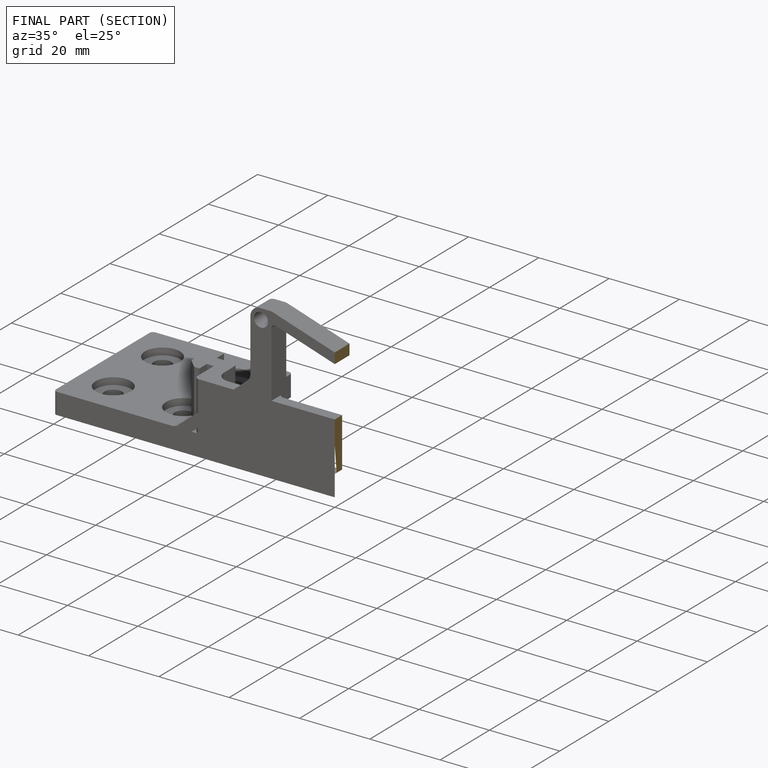
[diagram: finished part — half-section view (interior)]
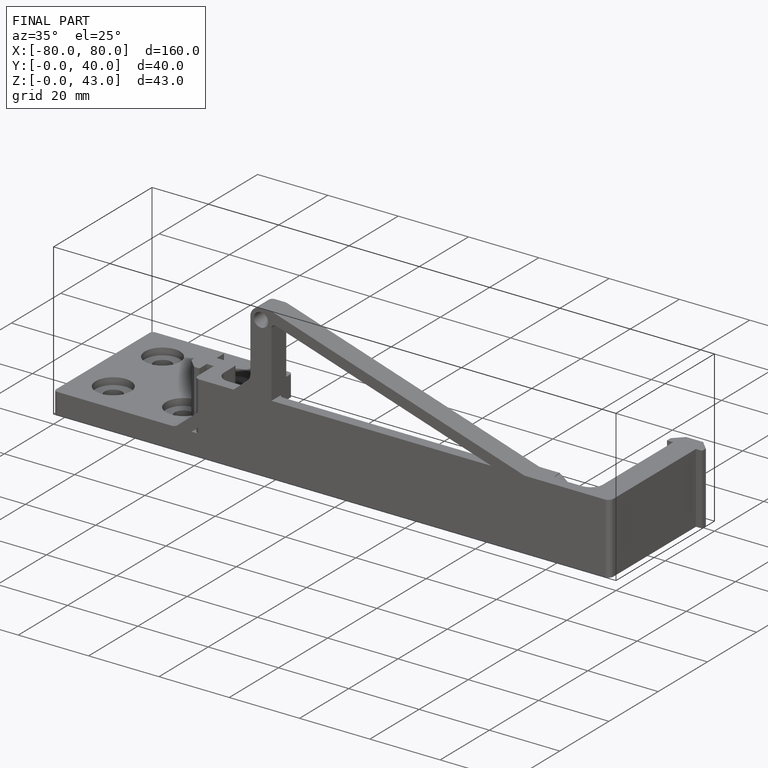
[diagram: finished part — iso view with bounding-box wireframe]
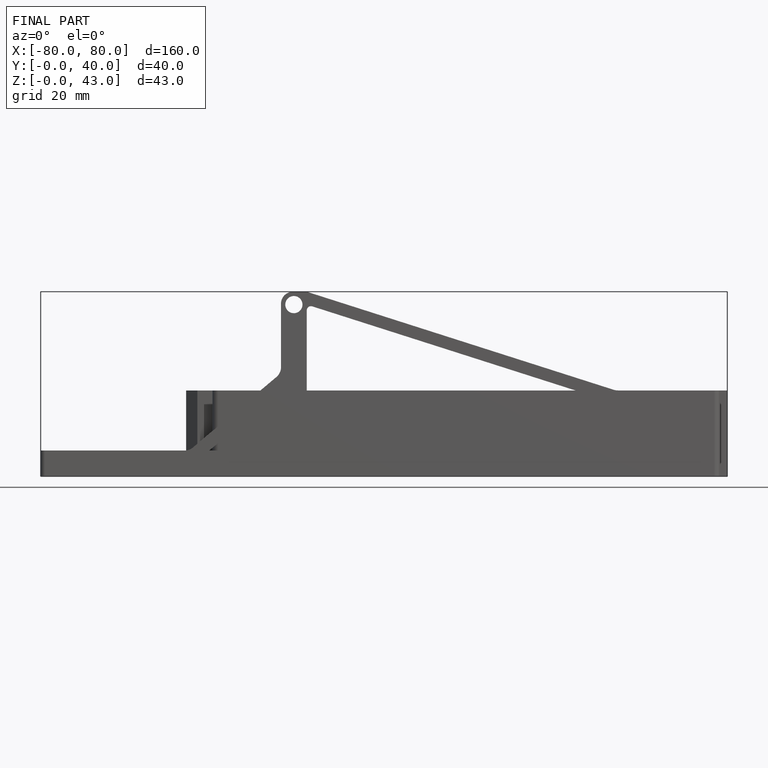
[diagram: finished part — front view with bounding-box wireframe]
